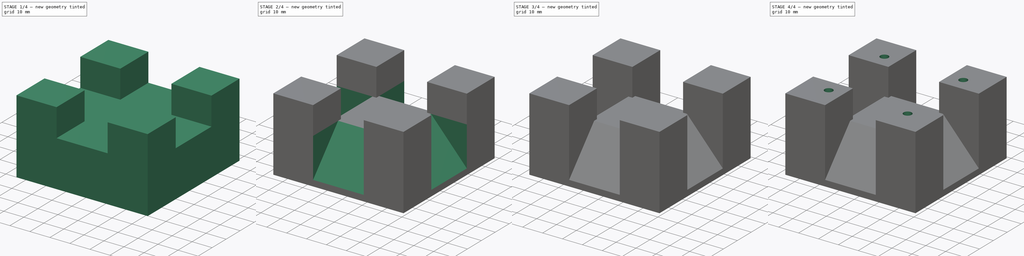
[diagram: build sequence overview — one tinted view per stage of 4, left to right]
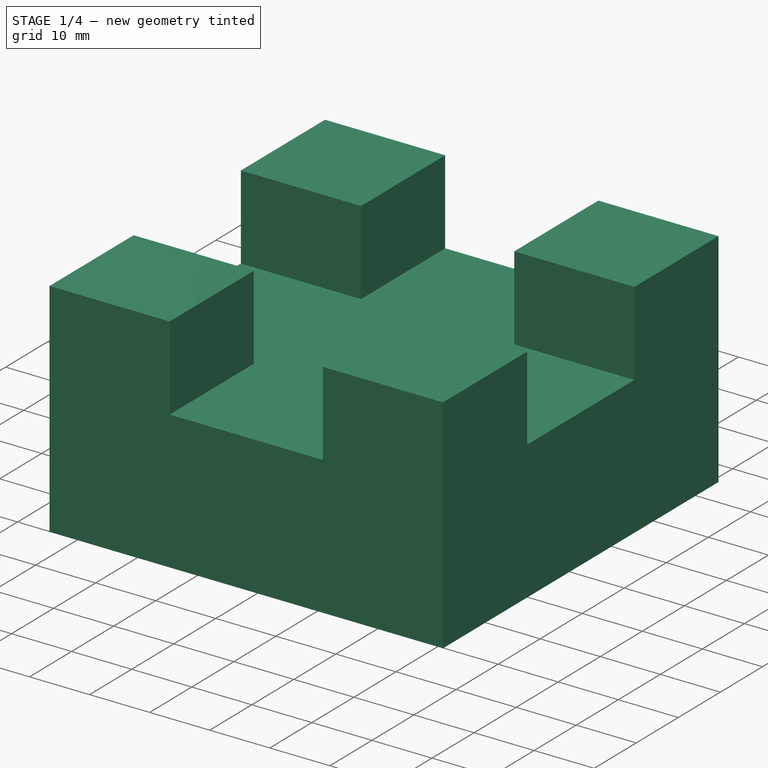
[diagram: stage 1 of 4 — iso view after this stage's code; geometry added in this stage tinted green]
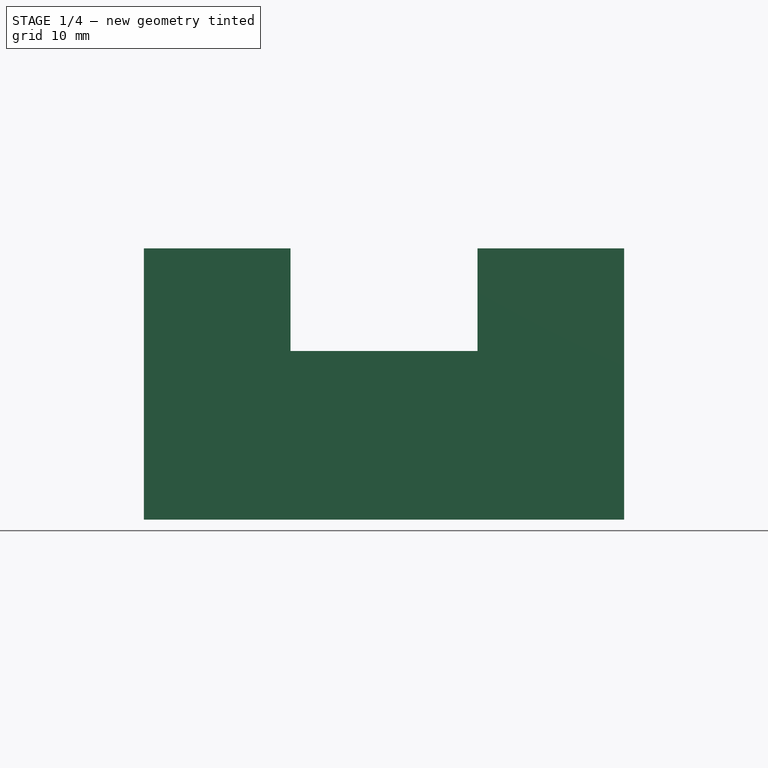
[diagram: stage 1 of 4 — front view after this stage's code; geometry added in this stage tinted green]
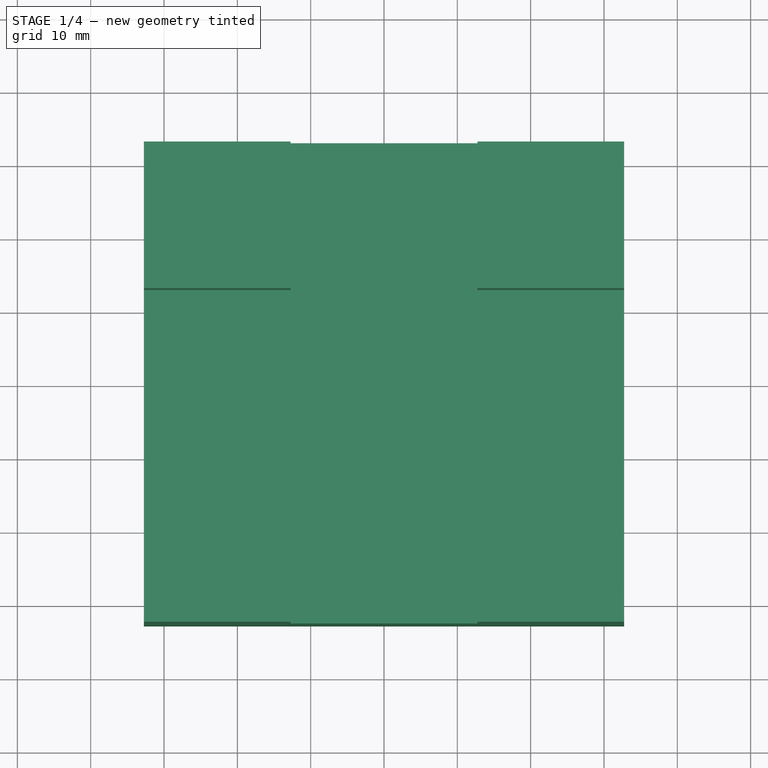
[diagram: stage 1 of 4 — top view after this stage's code; geometry added in this stage tinted green]
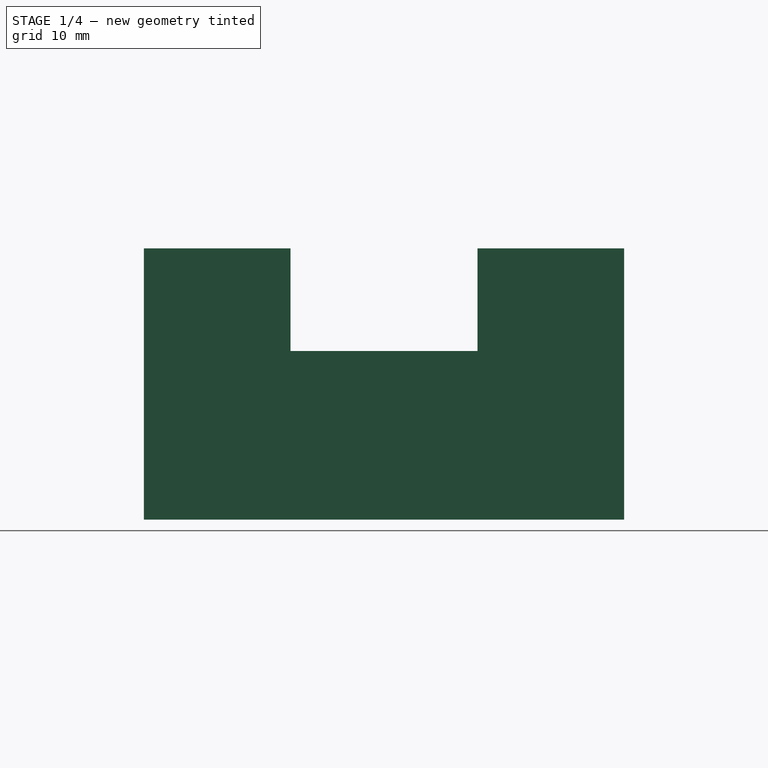
[diagram: stage 1 of 4 — right view after this stage's code; geometry added in this stage tinted green]
FCSTD DOCUMENT  (FreeCAD 0.20R29177 (Git))
Label: Standoff
License: All rights reserved
LicenseURL: http://en.wikipedia.org/wiki/All_rights_reserved
objects: Sketcher::SketchObject×10, PartDesign::Pocket×8, PartDesign::Pad×2, PartDesign::Chamfer×2, PartDesign::Plane×1, PartDesign::Body×1
note: 36 computed .brp shape members not serialized (recipe doc carries the construction recipe); baked Part::Feature solids carry a one-line shape summary decoded from their .brp

FEATURE [Sketcher::SketchObject] Sketch
  FullyConstrained = true
  MapMode = 5
  Support = -> [XY_Plane]
  sketch-geometry (4):
    g0: LineSegment StartX=-32.75 StartY=32.75 StartZ=0 EndX=32.75 EndY=32.75 EndZ=0
    g1: LineSegment StartX=32.75 StartY=32.75 StartZ=0 EndX=32.75 EndY=-32.75 EndZ=0
    g2: LineSegment StartX=32.75 StartY=-32.75 StartZ=0 EndX=-32.75 EndY=-32.75 EndZ=0
    g3: LineSegment StartX=-32.75 StartY=-32.75 StartZ=0 EndX=-32.75 EndY=32.75 EndZ=0
  constraints (11):
    c: Coincident(g0,g1)
    c: Coincident(g1,g2)
    c: Coincident(g2,g3)
    c: Coincident(g3,g0)
    c: Horizontal(g0)
    c: Horizontal(g2)
    c: Vertical(g1)
    c: Vertical(g3)
    c: Symmetric(g1,g0,g-1)
    c: Equal(g0,g3)
    c: DistanceX(g0,g0) = 65.5
FEATURE [PartDesign::Pad] Pad
  Direction = (0,0,1)
  Length = 37
  Length2 = 10
  Profile = -> Sketch
  ReferenceAxis = -> Sketch [N_Axis]
  Type = 0
FEATURE [Sketcher::SketchObject] Sketch001
  ExternalGeometry = -> [Pad]
  FullyConstrained = true
  MapMode = 5
  Placement = pos=(0,-32.75,0) rot=(1,0,0;1.5708rad)
  Support = -> [Pad]
  sketch-geometry (4):
    g0: LineSegment StartX=-12.75 StartY=37 StartZ=0 EndX=12.75 EndY=37 EndZ=0
    g1: LineSegment StartX=12.75 StartY=37 StartZ=0 EndX=12.75 EndY=23 EndZ=0
    g2: LineSegment StartX=12.75 StartY=23 StartZ=0 EndX=-12.75 EndY=23 EndZ=0
    g3: LineSegment StartX=-12.75 StartY=23 StartZ=0 EndX=-12.75 EndY=37 EndZ=0
  constraints (11):
    c: Coincident(g0,g1)
    c: Coincident(g1,g2)
    c: Coincident(g2,g3)
    c: Coincident(g3,g0)
    c: Horizontal(g0)
    c: Vertical(g1)
    c: Vertical(g3)
    c: PointOnObject(g0,g-3)
    c: Symmetric(g1,g2,g-2)
    c: DistanceX(g-4,g0) = 20
    c: DistanceY(g-1,g2) = 23
FEATURE [PartDesign::Pocket] Pocket
  BaseFeature = -> Pad
  Direction = (0,1,-2e-16)
  Length = 5
  Length2 = 5
  Profile = -> Sketch001
  ReferenceAxis = -> Sketch001 [N_Axis]
  Type = 1
FEATURE [Sketcher::SketchObject] Sketch002
  ExternalGeometry = -> [Pocket]
  FullyConstrained = true
  MapMode = 5
  Placement = pos=(-32.75,0,0) rot=(0.57735,-0.57735,-0.57735;2.0944rad)
  Support = -> [Pocket]
  sketch-geometry (4):
    g0: LineSegment StartX=-12.75 StartY=37 StartZ=0 EndX=12.75 EndY=37 EndZ=0
    g1: LineSegment StartX=12.75 StartY=37 StartZ=0 EndX=12.75 EndY=23 EndZ=0
    g2: LineSegment StartX=12.75 StartY=23 StartZ=0 EndX=-12.75 EndY=23 EndZ=0
    g3: LineSegment StartX=-12.75 StartY=23 StartZ=0 EndX=-12.75 EndY=37 EndZ=0
  constraints (11):
    c: Coincident(g0,g1)
    c: Coincident(g1,g2)
    c: Coincident(g2,g3)
    c: Coincident(g3,g0)
    c: Horizontal(g0)
    c: Vertical(g1)
    c: Vertical(g3)
    c: PointOnObject(g0,g-3)
    c: DistanceY(g-1,g2) = 23
    c: DistanceX(g-4,g0) = 20
    c: Symmetric(g2,g1,g-2)
FEATURE [PartDesign::Pocket] Pocket001
  BaseFeature = -> Pocket
  Direction = (1,0,0)
  Length = 5
  Length2 = 5
  Profile = -> Sketch002
  ReferenceAxis = -> Sketch002 [N_Axis]
  Type = 1
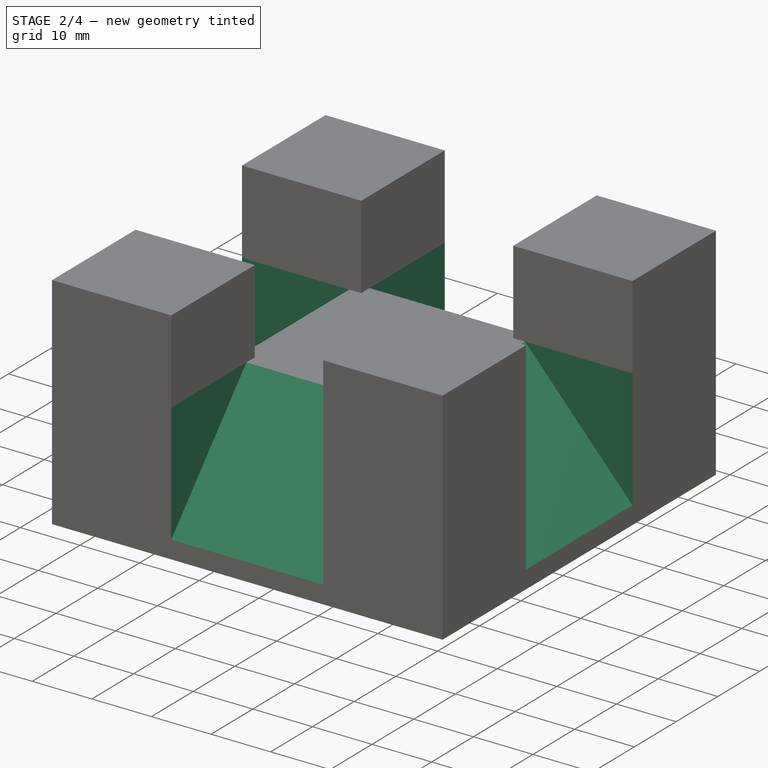
[diagram: stage 2 of 4 — iso view after this stage's code; geometry added in this stage tinted green]
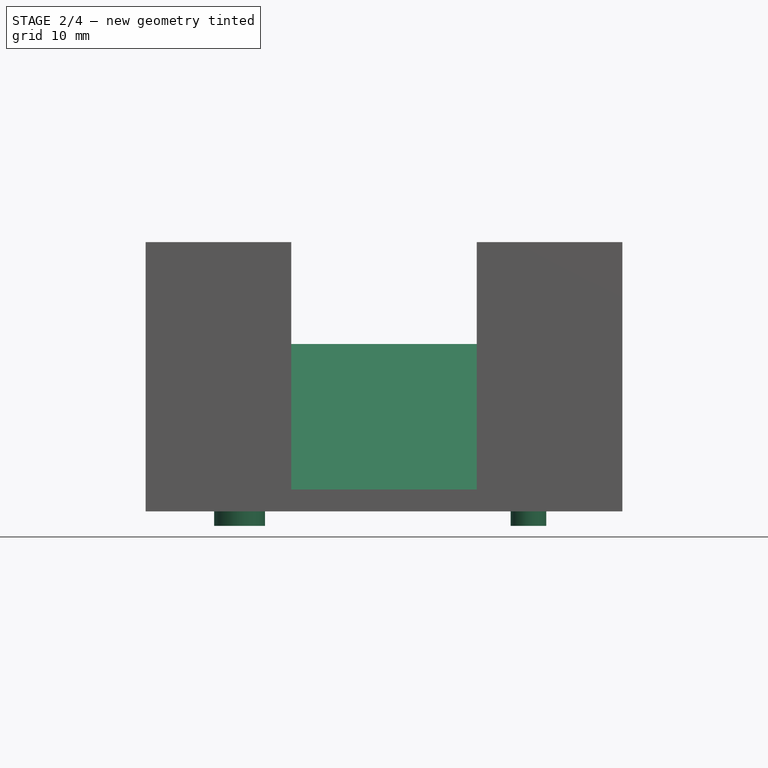
[diagram: stage 2 of 4 — front view after this stage's code; geometry added in this stage tinted green]
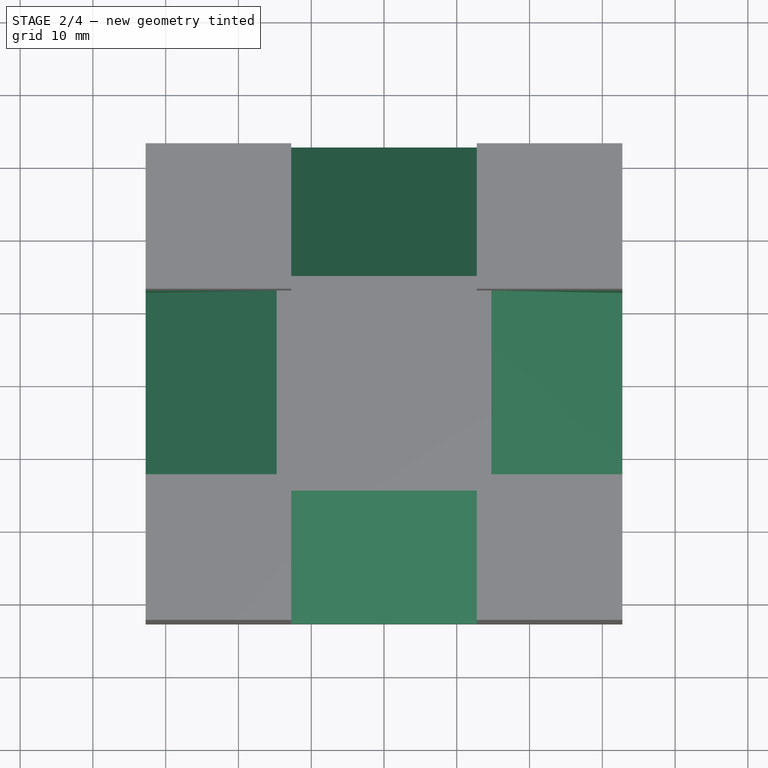
[diagram: stage 2 of 4 — top view after this stage's code; geometry added in this stage tinted green]
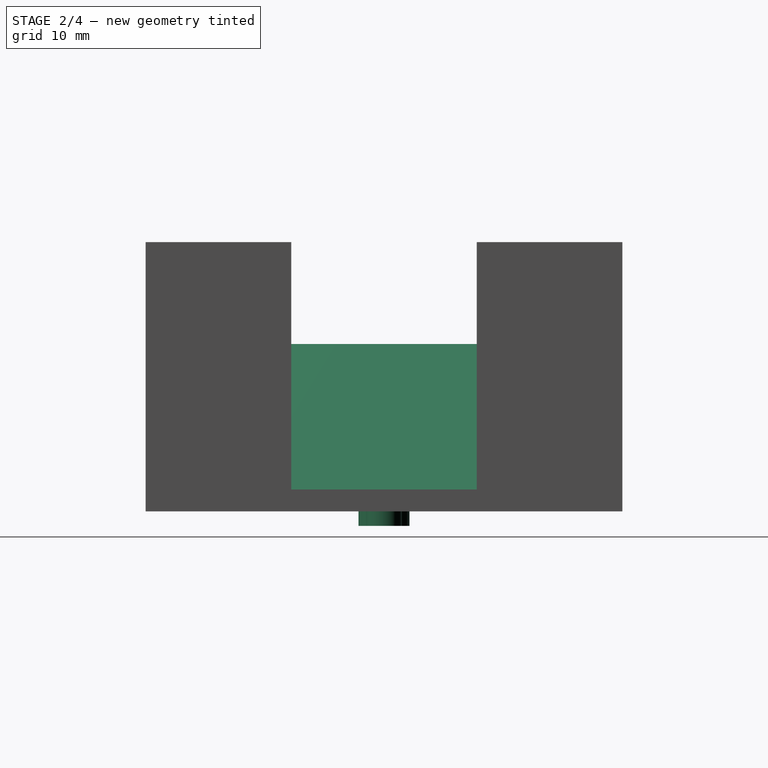
[diagram: stage 2 of 4 — right view after this stage's code; geometry added in this stage tinted green]
FEATURE [PartDesign::Chamfer] Chamfer
  Angle = 45
  Base = -> Pocket001 [Edge5,Edge35,Edge29,Edge15]
  BaseFeature = -> Pocket001
  ChamferType = 1
  FlipDirection = false
  Size = 20
  Size2 = 18
  SupportTransform = false
  UseAllEdges = false
FEATURE [Sketcher::SketchObject] Sketch003
  ExternalGeometry = -> [Chamfer]
  FullyConstrained = true
  MapMode = 5
  Placement = pos=(0,0,0) rot=(1,0,0;3.14159rad)
  Support = -> [Chamfer]
  sketch-geometry (4):
    g0: Circle CenterX=-19.85 CenterY=20 CenterZ=0 NormalX=0 NormalY=0 NormalZ=1 AngleXU=0 Radius=5
    g1: Circle CenterX=19.85 CenterY=20 CenterZ=0 NormalX=0 NormalY=0 NormalZ=1 AngleXU=0 Radius=5
    g2: Circle CenterX=-19.85 CenterY=-20 CenterZ=0 NormalX=0 NormalY=0 NormalZ=1 AngleXU=0 Radius=5
    g3: Circle CenterX=19.85 CenterY=-20 CenterZ=0 NormalX=0 NormalY=0 NormalZ=1 AngleXU=0 Radius=5
  constraints (11):
    c: Horizontal(g0,g1)
    c: Horizontal(g2,g3)
    c: Vertical(g0,g2)
    c: Vertical(g1,g3)
    c: Symmetric(g2,g1,g-1)
    c: Equal(g0,g2)
    c: Equal(g2,g3)
    c: Equal(g3,g1)
    c: DistanceY(g0,g-4) = 12.75
    c: DistanceX(g-4,g0) = 12.9
    c: Diameter(g0) = 10
FEATURE [PartDesign::Pocket] Pocket002
  BaseFeature = -> Chamfer
  Direction = (0,0,1)
  Length = 2.5
  Length2 = 5
  Profile = -> Sketch003
  ReferenceAxis = -> Sketch003 [N_Axis]
  Type = 0
FEATURE [Sketcher::SketchObject] Sketch004
  ExternalGeometry = -> [Pocket002]
  FullyConstrained = true
  MapMode = 5
  Placement = pos=(0,0,0) rot=(1,0,0;3.14159rad)
  Support = -> [Pocket002]
  sketch-geometry (2):
    g0: Circle CenterX=-19.85 CenterY=0 CenterZ=0 NormalX=0 NormalY=0 NormalZ=1 AngleXU=0 Radius=3.5
    g1: Circle CenterX=19.85 CenterY=0 CenterZ=0 NormalX=0 NormalY=0 NormalZ=1 AngleXU=0 Radius=2.45
  constraints (6):
    c: PointOnObject(g0,g-1)
    c: PointOnObject(g1,g-1)
    c: Diameter(g0) = 7
    c: Diameter(g1) = 4.9
    c: Vertical(g1,g-4)
    c: Vertical(g-3,g0)
FEATURE [PartDesign::Pad] Pad001
  BaseFeature = -> Pocket002
  Direction = (0,0,-1)
  Length = 2
  Length2 = 10
  Profile = -> Sketch004
  ReferenceAxis = -> Sketch004 [N_Axis]
  Type = 0
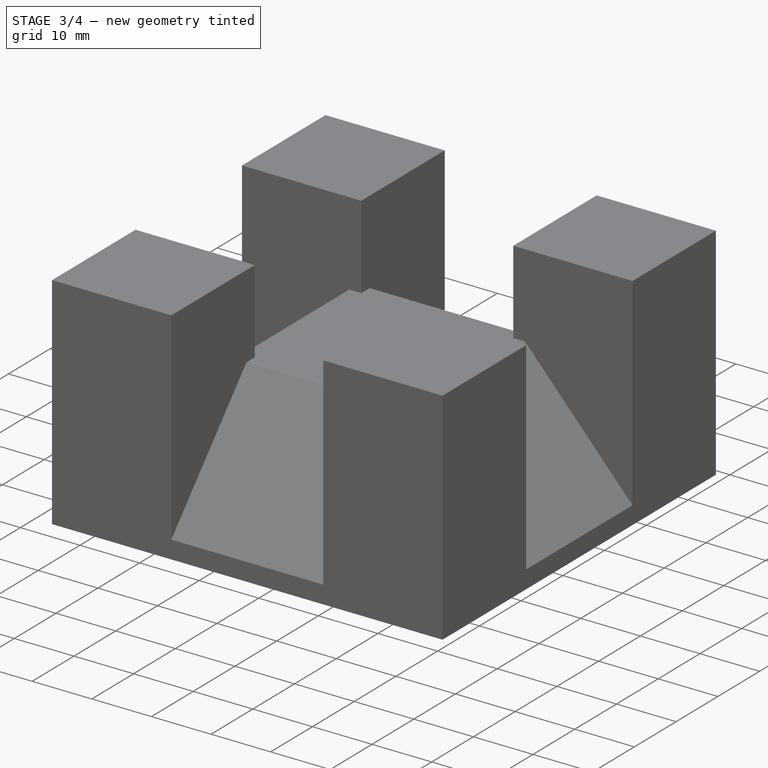
[diagram: stage 3 of 4 — iso view after this stage's code; geometry added in this stage tinted green]
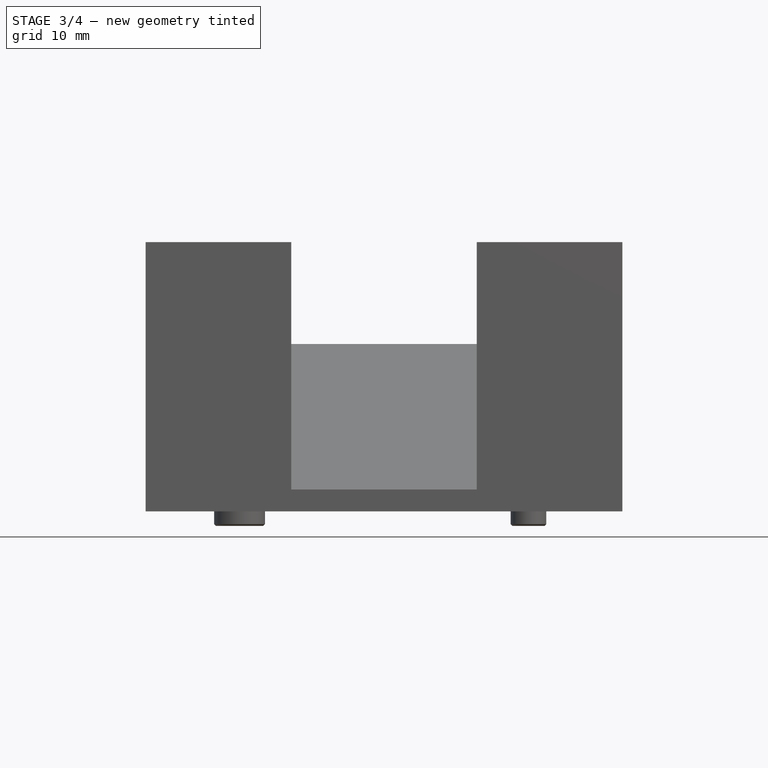
[diagram: stage 3 of 4 — front view after this stage's code; geometry added in this stage tinted green]
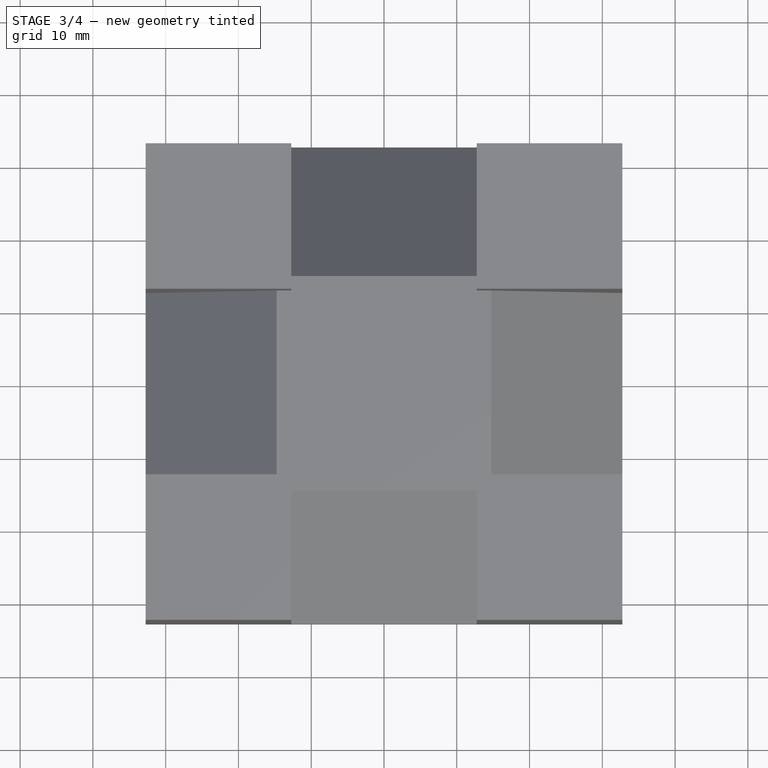
[diagram: stage 3 of 4 — top view after this stage's code; geometry added in this stage tinted green]
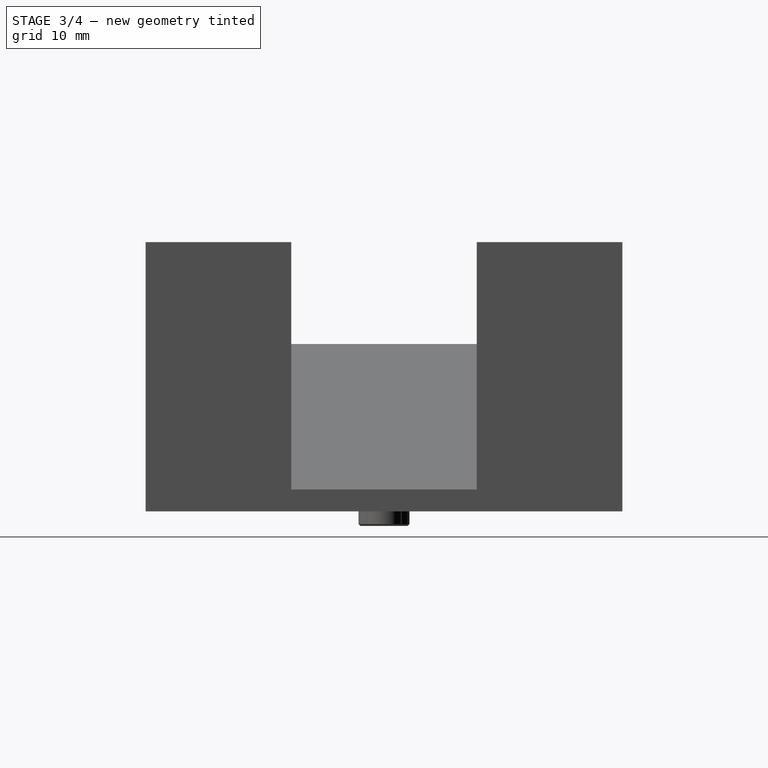
[diagram: stage 3 of 4 — right view after this stage's code; geometry added in this stage tinted green]
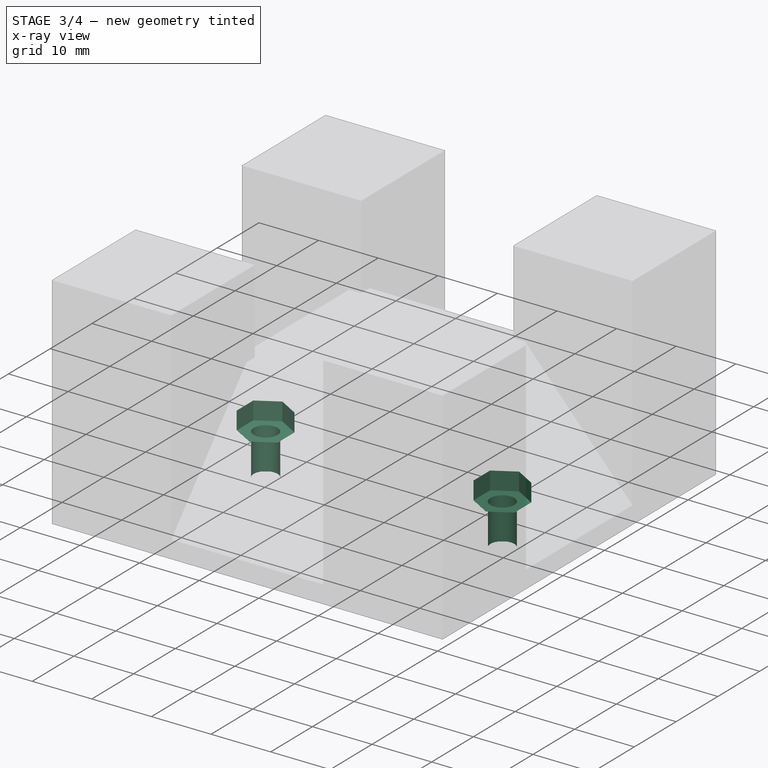
[diagram: stage 3 of 4 — x-ray composite at the iso view; earlier geometry ghosted, this stage's added geometry solid]
FEATURE [Sketcher::SketchObject] Sketch005
  ExternalGeometry = -> [Pad001]
  FullyConstrained = true
  MapMode = 5
  Placement = pos=(0,0,-2) rot=(1,0,0;3.14159rad)
  Support = -> [Pad001]
  sketch-geometry (2):
    g0: Circle CenterX=-19.85 CenterY=0 CenterZ=0 NormalX=0 NormalY=0 NormalZ=1 AngleXU=0 Radius=2
    g1: Circle CenterX=19.85 CenterY=0 CenterZ=0 NormalX=0 NormalY=0 NormalZ=1 AngleXU=0 Radius=2
  constraints (4):
    c: Coincident(g0,g-3)
    c: Coincident(g1,g-4)
    c: Equal(g0,g1)
    c: Diameter(g0) = 4
FEATURE [PartDesign::Pocket] Pocket003
  BaseFeature = -> Pad001
  Direction = (0,0,1)
  Length = 10
  Length2 = 5
  Profile = -> Sketch005
  ReferenceAxis = -> Sketch005 [N_Axis]
  Type = 0
FEATURE [PartDesign::Chamfer] Chamfer001
  Angle = 45
  Base = -> Pocket003 [Edge70,Edge74]
  BaseFeature = -> Pocket003
  ChamferType = 0
  FlipDirection = false
  Size = 0.25
  Size2 = 1
  SupportTransform = false
  UseAllEdges = false
FEATURE [Sketcher::SketchObject] Sketch006
  ExternalGeometry = -> [Chamfer001]
  FullyConstrained = true
  MapMode = 5
  Placement = pos=(0,0,8) rot=(1,0,0;3.14159rad)
  Support = -> [Chamfer001]
  sketch-geometry (14):
    g0: LineSegment StartX=-19.85 StartY=-4 StartZ=0 EndX=-16.3859 EndY=-2 EndZ=0
    g1: LineSegment StartX=-16.3859 StartY=-2 StartZ=0 EndX=-16.3859 EndY=2 EndZ=0
    g2: LineSegment StartX=-16.3859 StartY=2 StartZ=0 EndX=-19.85 EndY=4 EndZ=0
    g3: LineSegment StartX=-19.85 StartY=4 StartZ=0 EndX=-23.3141 EndY=2 EndZ=0
    g4: LineSegment StartX=-23.3141 StartY=2 StartZ=0 EndX=-23.3141 EndY=-2 EndZ=0
    g5: LineSegment StartX=-23.3141 StartY=-2 StartZ=0 EndX=-19.85 EndY=-4 EndZ=0
    g6: Circle CenterX=-19.85 CenterY=0 CenterZ=0 NormalX=0 NormalY=0 NormalZ=1 AngleXU=0 Radius=4
    g7: LineSegment StartX=19.85 StartY=-4 StartZ=0 EndX=23.3141 EndY=-2 EndZ=0
    g8: LineSegment StartX=23.3141 StartY=-2 StartZ=0 EndX=23.3141 EndY=2 EndZ=0
    g9: LineSegment StartX=23.3141 StartY=2 StartZ=0 EndX=19.85 EndY=4 EndZ=0
    g10: LineSegment StartX=19.85 StartY=4 StartZ=0 EndX=16.3859 EndY=2 EndZ=0
    g11: LineSegment StartX=16.3859 StartY=2 StartZ=0 EndX=16.3859 EndY=-2 EndZ=0
    g12: LineSegment StartX=16.3859 StartY=-2 StartZ=0 EndX=19.85 EndY=-4 EndZ=0
    g13: Circle CenterX=19.85 CenterY=0 CenterZ=0 NormalX=0 NormalY=0 NormalZ=1 AngleXU=0 Radius=4
  constraints (32):
    c: Coincident(g0,g1)
    c: Coincident(g1,g2)
    c: Coincident(g2,g3)
    c: Coincident(g3,g4)
    c: Coincident(g4,g5)
    c: Coincident(g5,g0)
    c: Equal(g0, g1-g5) x5
    c: PointOnObject(g0,g6)
    c: PointOnObject(g1,g6)
    c: PointOnObject(g2,g6)
    c: PointOnObject(g3,g6)
    c: PointOnObject(g4,g6)
    c: PointOnObject(g5,g6)
    c: Coincident(g6,g-4)
    c: Coincident(g7,g8)
    c: Coincident(g8,g9)
    c: Coincident(g9,g10)
    c: Coincident(g10,g11)
    c: Coincident(g11,g12)
    c: Coincident(g12,g7)
    c: Equal(g7, g8-g12) x5
    c: PointOnObject(g7,g13)
    c: PointOnObject(g8,g13)
    c: PointOnObject(g9,g13)
    c: PointOnObject(g10,g13)
    c: PointOnObject(g11,g13)
    c: PointOnObject(g12,g13)
    c: Coincident(g13,g-3)
    c: Vertical(g11,g10)
    c: Vertical(g0,g1)
    c: Equal(g6,g13)
    c: Diameter(g6) = 8
FEATURE [PartDesign::Pocket] Pocket004
  BaseFeature = -> Chamfer001
  Direction = (0,0,1)
  Length = 3
  Length2 = 5
  Profile = -> Sketch006
  ReferenceAxis = -> Sketch006 [N_Axis]
  Reversed = true
  Type = 0
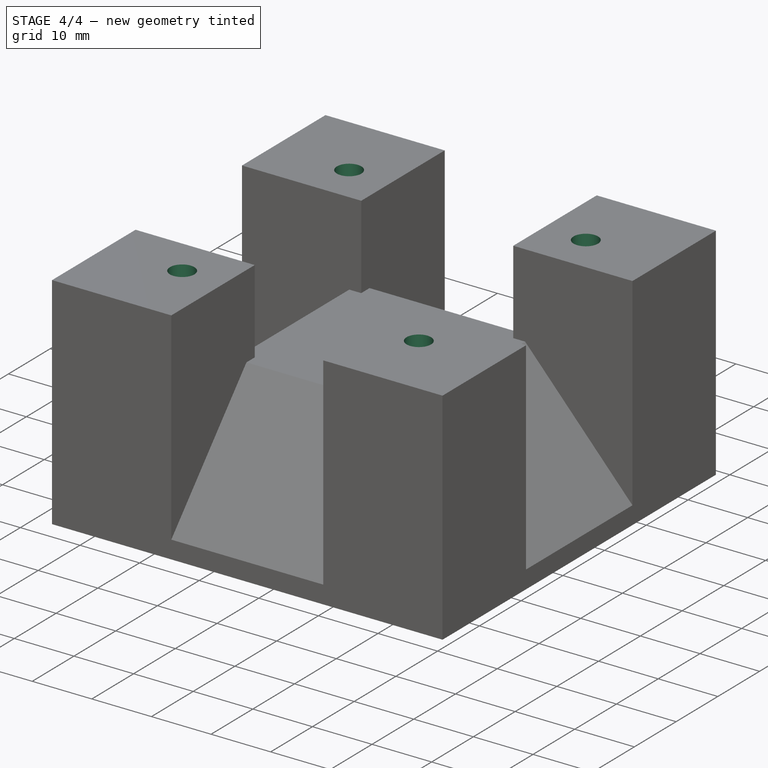
[diagram: stage 4 of 4 — iso view after this stage's code; geometry added in this stage tinted green]
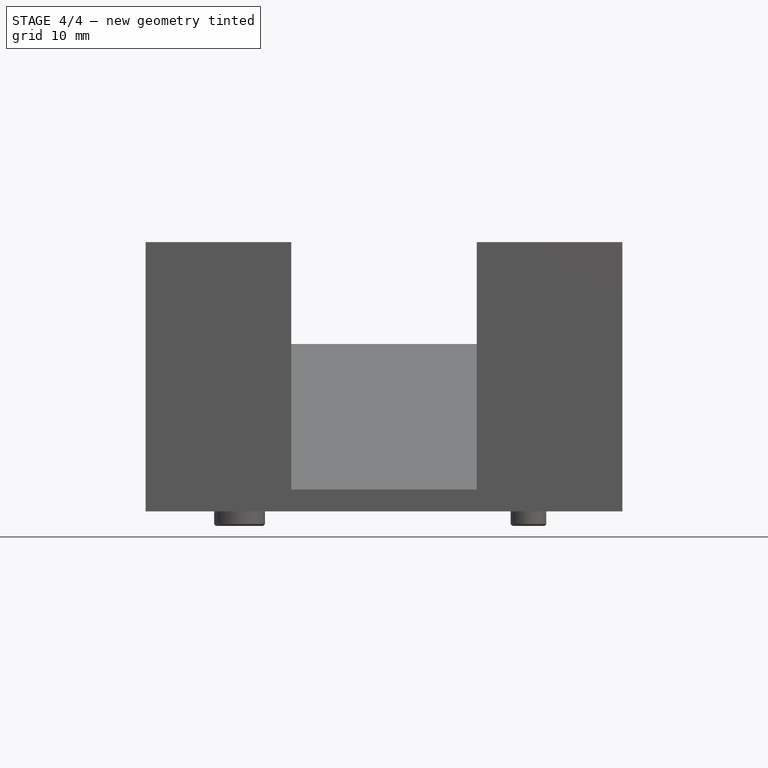
[diagram: stage 4 of 4 — front view after this stage's code; geometry added in this stage tinted green]
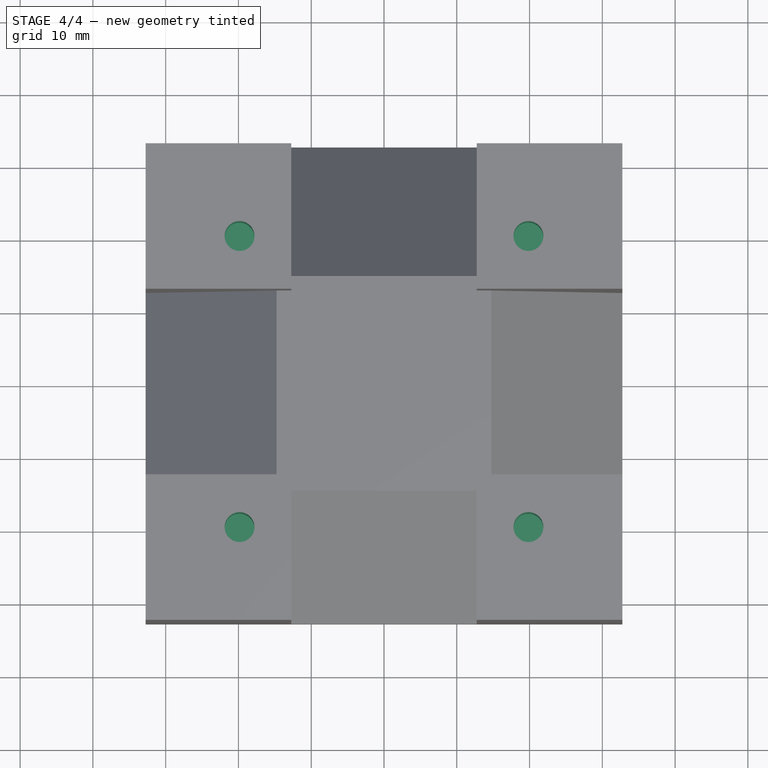
[diagram: stage 4 of 4 — top view after this stage's code; geometry added in this stage tinted green]
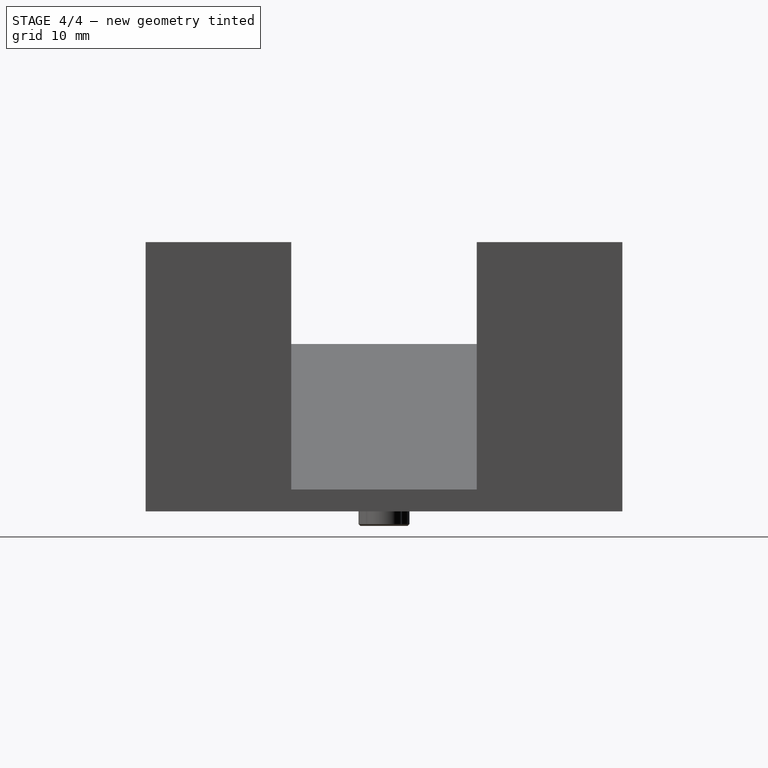
[diagram: stage 4 of 4 — right view after this stage's code; geometry added in this stage tinted green]
FEATURE [Sketcher::SketchObject] Sketch007
  ExternalGeometry = -> [Pocket004]
  FullyConstrained = true
  MapMode = 5
  Placement = pos=(0,0,37) rot=(0,0,1;0rad)
  Support = -> [Pocket004]
  sketch-geometry (4):
    g0: Circle CenterX=-19.85 CenterY=20 CenterZ=0 NormalX=0 NormalY=0 NormalZ=1 AngleXU=0 Radius=2.05
    g1: Circle CenterX=19.85 CenterY=20 CenterZ=0 NormalX=0 NormalY=0 NormalZ=1 AngleXU=0 Radius=2.05
    g2: Circle CenterX=-19.85 CenterY=-20 CenterZ=0 NormalX=0 NormalY=0 NormalZ=1 AngleXU=0 Radius=2.05
    g3: Circle CenterX=19.85 CenterY=-20 CenterZ=0 NormalX=0 NormalY=0 NormalZ=1 AngleXU=0 Radius=2.05
  constraints (11):
    c: DistanceY(g0,g-4) = 12.75
    c: DistanceX(g-4,g0) = 12.9
    c: Diameter(g0) = 4.1
    c: Equal(g0,g1)
    c: Equal(g1,g2)
    c: Equal(g2,g3)
    c: Horizontal(g1,g0)
    c: Horizontal(g2,g3)
    c: Vertical(g0,g2)
    c: Vertical(g1,g3)
    c: Symmetric(g3,g0,g-1)
FEATURE [PartDesign::Pocket] Pocket005
  BaseFeature = -> Pocket004
  Direction = (0,0,-1)
  Length = 12
  Length2 = 5
  Profile = -> Sketch007
  ReferenceAxis = -> Sketch007 [N_Axis]
  Type = 0
FEATURE [PartDesign::Plane] DatumPlane
  AttachmentOffset = pos=(0,0,-5) rot=(0,0,1;0rad)
  Length = 78.6
  MapMode = 5
  Placement = pos=(0,0,32) rot=(0,0,1;0rad)
  ResizeMode = 0
  Support = -> [Pocket005]
  Width = 78.6
FEATURE [Sketcher::SketchObject] Sketch008
  ExternalGeometry = -> [Pocket005]
  FullyConstrained = true
  MapMode = 5
  Placement = pos=(0,0,32) rot=(0,0,1;0rad)
  Support = -> [DatumPlane]
  sketch-geometry (28):
    g0: LineSegment StartX=-19.85 StartY=16 StartZ=0 EndX=-16.3859 EndY=18 EndZ=0
    g1: LineSegment StartX=-16.3859 StartY=18 StartZ=0 EndX=-16.3859 EndY=22 EndZ=0
    g2: LineSegment StartX=-16.3859 StartY=22 StartZ=0 EndX=-19.85 EndY=24 EndZ=0
    g3: LineSegment StartX=-19.85 StartY=24 StartZ=0 EndX=-23.3141 EndY=22 EndZ=0
    g4: LineSegment StartX=-23.3141 StartY=22 StartZ=0 EndX=-23.3141 EndY=18 EndZ=0
    g5: LineSegment StartX=-23.3141 StartY=18 StartZ=0 EndX=-19.85 EndY=16 EndZ=0
    g6: Circle CenterX=-19.85 CenterY=20 CenterZ=0 NormalX=0 NormalY=0 NormalZ=1 AngleXU=0 Radius=4
    g7: LineSegment StartX=-19.85 StartY=-24 StartZ=0 EndX=-16.3859 EndY=-22 EndZ=0
    g8: LineSegment StartX=-16.3859 StartY=-22 StartZ=0 EndX=-16.3859 EndY=-18 EndZ=0
    g9: LineSegment StartX=-16.3859 StartY=-18 StartZ=0 EndX=-19.85 EndY=-16 EndZ=0
    g10: LineSegment StartX=-19.85 StartY=-16 StartZ=0 EndX=-23.3141 EndY=-18 EndZ=0
    g11: LineSegment StartX=-23.3141 StartY=-18 StartZ=0 EndX=-23.3141 EndY=-22 EndZ=0
    g12: LineSegment StartX=-23.3141 StartY=-22 StartZ=0 EndX=-19.85 EndY=-24 EndZ=0
    g13: Circle CenterX=-19.85 CenterY=-20 CenterZ=0 NormalX=0 NormalY=0 NormalZ=1 AngleXU=0 Radius=4
    g14: LineSegment StartX=19.85 StartY=16 StartZ=0 EndX=23.3141 EndY=18 EndZ=0
    g15: LineSegment StartX=23.3141 StartY=18 StartZ=0 EndX=23.3141 EndY=22 EndZ=0
    g16: LineSegment StartX=23.3141 StartY=22 StartZ=0 EndX=19.85 EndY=24 EndZ=0
    g17: LineSegment StartX=19.85 StartY=24 StartZ=0 EndX=16.3859 EndY=22 EndZ=0
    g18: LineSegment StartX=16.3859 StartY=22 StartZ=0 EndX=16.3859 EndY=18 EndZ=0
    g19: LineSegment StartX=16.3859 StartY=18 StartZ=0 EndX=19.85 EndY=16 EndZ=0
    g20: Circle CenterX=19.85 CenterY=20 CenterZ=0 NormalX=0 NormalY=0 NormalZ=1 AngleXU=0 Radius=4
    g21: LineSegment StartX=19.85 StartY=-24 StartZ=0 EndX=23.3141 EndY=-22 EndZ=0
    g22: LineSegment StartX=23.3141 StartY=-22 StartZ=0 EndX=23.3141 EndY=-18 EndZ=0
    g23: LineSegment StartX=23.3141 StartY=-18 StartZ=0 EndX=19.85 EndY=-16 EndZ=0
    g24: LineSegment StartX=19.85 StartY=-16 StartZ=0 EndX=16.3859 EndY=-18 EndZ=0
    g25: LineSegment StartX=16.3859 StartY=-18 StartZ=0 EndX=16.3859 EndY=-22 EndZ=0
    g26: LineSegment StartX=16.3859 StartY=-22 StartZ=0 EndX=19.85 EndY=-24 EndZ=0
    g27: Circle CenterX=19.85 CenterY=-20 CenterZ=0 NormalX=0 NormalY=0 NormalZ=1 AngleXU=0 Radius=4
  constraints (64):
    c: Coincident(g0,g1)
    c: Coincident(g1,g2)
    c: Coincident(g2,g3)
    c: Coincident(g3,g4)
    c: Coincident(g4,g5)
    c: Coincident(g5,g0)
    c: Equal(g0, g1-g5) x5
    c: PointOnObject(g0,g6)
    c: PointOnObject(g1,g6)
    c: PointOnObject(g2,g6)
    c: PointOnObject(g3,g6)
    c: PointOnObject(g4,g6)
    c: PointOnObject(g5,g6)
    c: Coincident(g6,g-3)
    c: Coincident(g7,g8)
    c: Coincident(g8,g9)
    c: Coincident(g9,g10)
    c: Coincident(g10,g11)
    c: Coincident(g11,g12)
    c: Coincident(g12,g7)
    c: Equal(g7, g8-g12) x5
    c: PointOnObject(g7,g13)
    c: PointOnObject(g8,g13)
    c: PointOnObject(g9,g13)
    c: PointOnObject(g10,g13)
    c: PointOnObject(g11,g13)
    c: PointOnObject(g12,g13)
    c: Coincident(g13,g-6)
    c: Vertical(g3,g4)
    c: Vertical(g4,g10)
    c: Vertical(g10,g11)
    c: Coincident(g14,g15)
    c: Coincident(g15,g16)
    c: Coincident(g16,g17)
    c: Coincident(g17,g18)
    c: Coincident(g18,g19)
    c: Coincident(g19,g14)
    c: Equal(g14, g15-g19) x5
    c: PointOnObject(g14,g20)
    c: PointOnObject(g15,g20)
    c: PointOnObject(g16,g20)
    c: PointOnObject(g17,g20)
    c: PointOnObject(g18,g20)
    c: PointOnObject(g19,g20)
    c: Coincident(g20,g-4)
    c: Coincident(g21,g22)
    c: Coincident(g22,g23)
    c: Coincident(g23,g24)
    c: Coincident(g24,g25)
    c: Coincident(g25,g26)
    c: Coincident(g26,g21)
    c: Equal(g21, g22-g26) x5
    c: PointOnObject(g21,g27)
    c: PointOnObject(g22,g27)
    c: PointOnObject(g23,g27)
    c: PointOnObject(g24,g27)
    c: PointOnObject(g25,g27)
    c: PointOnObject(g26,g27)
    c: Coincident(g27,g-5)
    c: Vertical(g25,g24)
    c: Vertical(g24,g18)
    c: Vertical(g18,g17)
    c: Equal(g20,g6)
    c: Diameter(g6) = 8
FEATURE [PartDesign::Pocket] Pocket006
  BaseFeature = -> Pocket005
  Direction = (0,0,-1)
  Length = 3.15
  Length2 = 5
  Midplane = true
  Profile = -> Sketch008
  ReferenceAxis = -> Sketch008 [N_Axis]
  Type = 0
FEATURE [Sketcher::SketchObject] Sketch009
  ExternalGeometry = -> [Pocket006]
  FullyConstrained = true
  MapMode = 5
  Placement = pos=(0,0,8) rot=(1,0,0;3.14159rad)
  Support = -> [Pocket006]
  sketch-geometry (2):
    g0: Circle CenterX=-19.85 CenterY=0 CenterZ=0 NormalX=0 NormalY=0 NormalZ=1 AngleXU=0 Radius=2
    g1: Circle CenterX=19.85 CenterY=0 CenterZ=0 NormalX=0 NormalY=0 NormalZ=1 AngleXU=0 Radius=2
  constraints (4):
    c: Coincident(g0,g-3)
    c: Diameter(g0) = 4
    c: Coincident(g1,g-4)
    c: Diameter(g1) = 4
FEATURE [PartDesign::Pocket] Pocket007
  BaseFeature = -> Pocket006
  Direction = (0,0,1)
  Length = 5
  Length2 = 5
  Profile = -> Sketch009
  ReferenceAxis = -> Sketch009 [N_Axis]
  Type = 0
FEATURE [PartDesign::Body] Body
  Group = -> [Sketch,Pad,Sketch001,Pocket,Sketch002,Pocket001,Chamfer,Sketch003,Pocket002,Sketch004,Pad001,Sketch005,Pocket003,Chamfer001,Sketch006,Pocket004,Sketch007,Pocket005,DatumPlane,Sketch008,Pocket006,Sketch009,Pocket007]
  Origin = -> Origin
  Tip = -> Pocket007
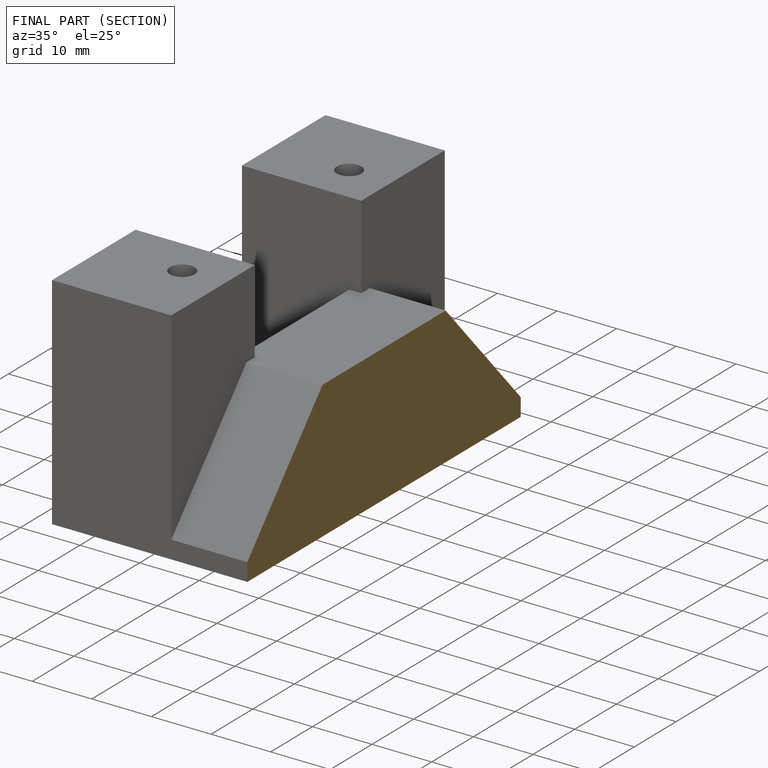
[diagram: finished part — half-section view (interior)]
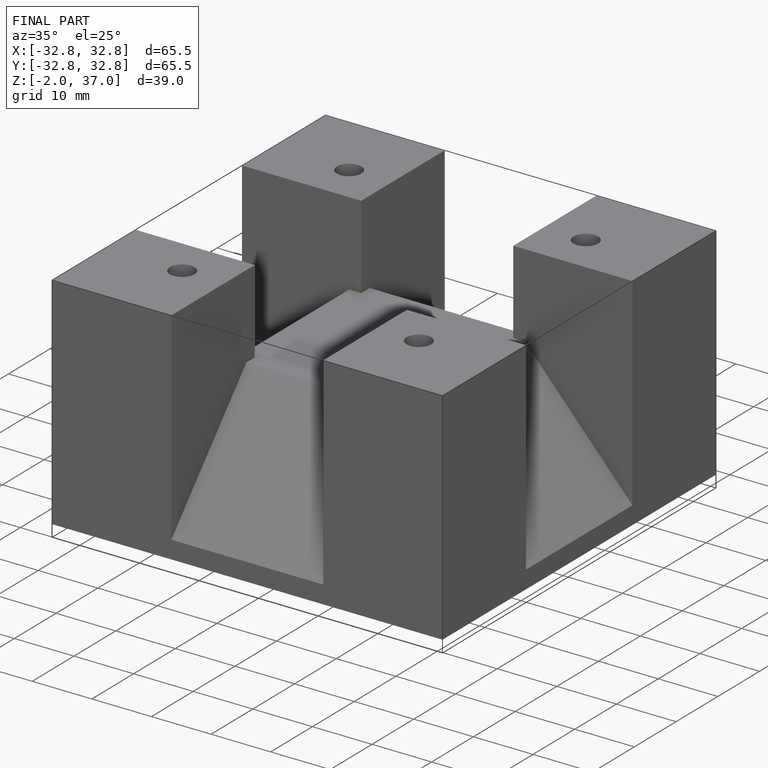
[diagram: finished part — iso view with bounding-box wireframe]
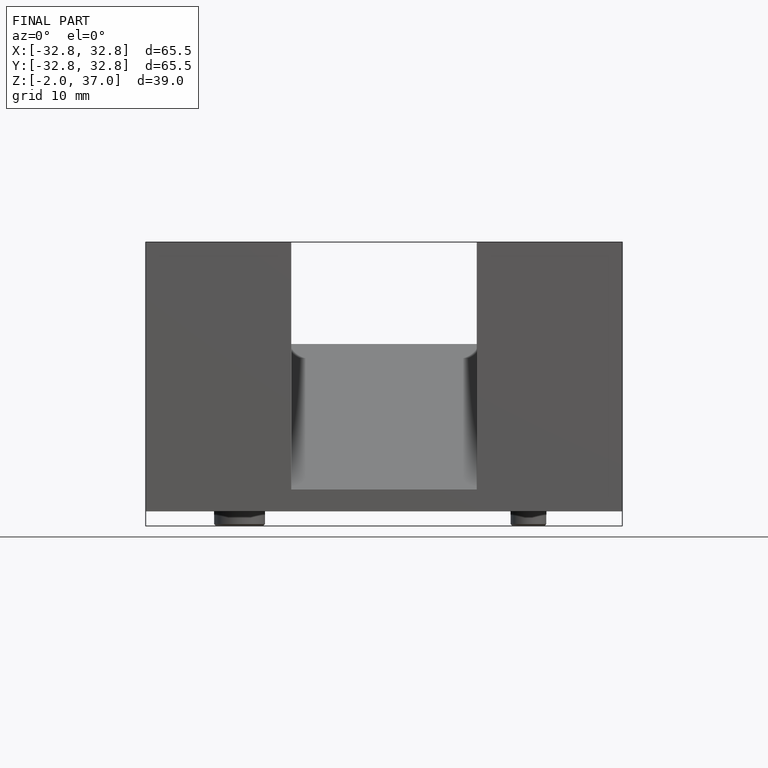
[diagram: finished part — front view with bounding-box wireframe]
